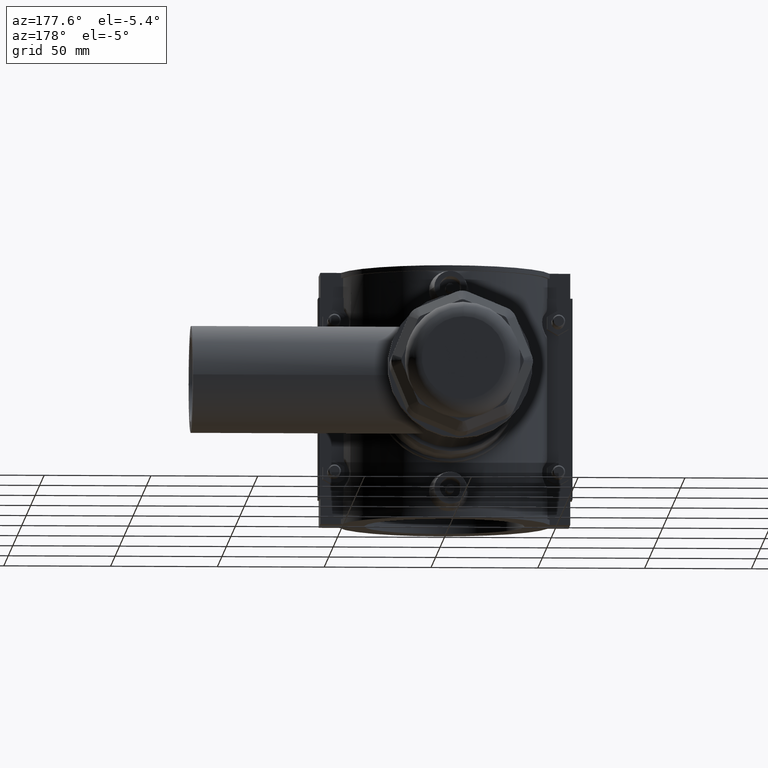
[diagram: clean part render]
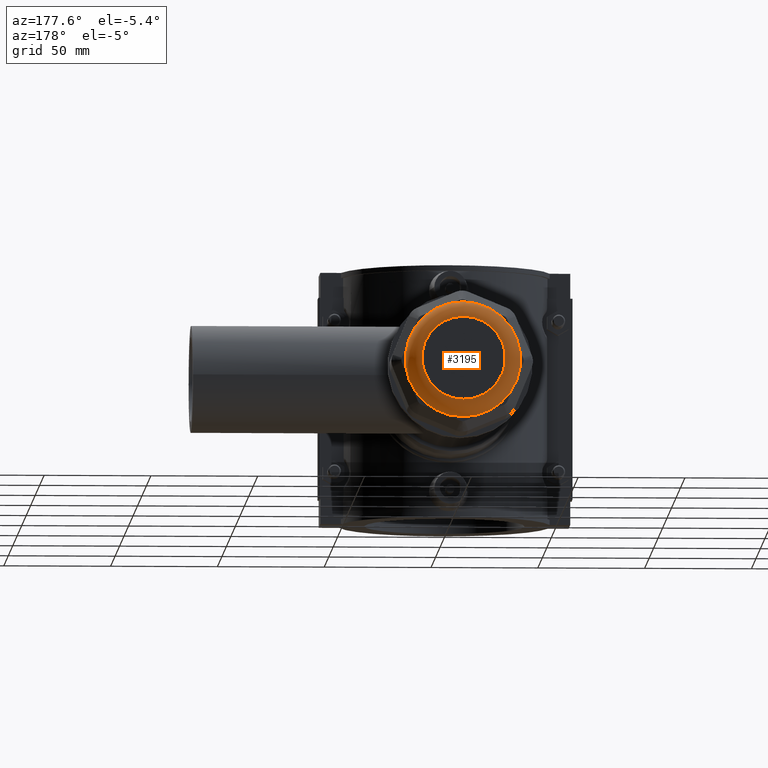
[diagram: same view with one face highlighted and labeled with its STEP entity id]
A machine part, auxiliary view. The second image highlights one B-rep face of the part: STEP entity #3195.
In plain terms, the highlighted toroidal blend (fillet) surface has major radius 19.5 mm and minor (blend) radius 7.5 mm.
Its self-contained STEP definition (entity closure, byte-faithful):
#20=TOROIDAL_SURFACE('',#3430,19.5,7.5);
#630=FACE_BOUND('',#1016,.T.);
#815=FACE_OUTER_BOUND('',#1015,.T.);
#1015=EDGE_LOOP('',(#2258));
#1016=EDGE_LOOP('',(#2259));
#1251=CIRCLE('',#3431,27.);
#1252=CIRCLE('',#3432,19.5);
#1401=VERTEX_POINT('',#5038);
#1402=VERTEX_POINT('',#5040);
#1742=EDGE_CURVE('',#1401,#1401,#1251,.T.);
#1743=EDGE_CURVE('',#1402,#1402,#1252,.T.);
#2258=ORIENTED_EDGE('',*,*,#1742,.T.);
#2259=ORIENTED_EDGE('',*,*,#1743,.T.);
#3195=ADVANCED_FACE('',(#815,#630),#20,.T.);
#3430=AXIS2_PLACEMENT_3D('',#5037,#3876,#3877);
#3431=AXIS2_PLACEMENT_3D('',#5039,#3878,#3879);
#3432=AXIS2_PLACEMENT_3D('',#5041,#3880,#3881);
#3876=DIRECTION('center_axis',(0.,1.,3.06161699786838E-16));
#3877=DIRECTION('ref_axis',(0.,0.,1.));
#3878=DIRECTION('center_axis',(0.,1.,3.06161699786838E-16));
#3879=DIRECTION('ref_axis',(6.12323399573677E-17,2.87835598976892E-16,-1.));
#3880=DIRECTION('center_axis',(0.,-1.,-3.06161699786838E-16));
#3881=DIRECTION('ref_axis',(6.12323399573677E-17,3.06161699786838E-16,-1.));
#5037=CARTESIAN_POINT('Origin',(0.,207.,5.18944081138691E-14));
#5038=CARTESIAN_POINT('',(1.65327317884893E-15,207.,27.0000000000001));
#5039=CARTESIAN_POINT('Origin',(0.,207.,5.18944081138691E-14));
#5040=CARTESIAN_POINT('',(-3.58209188750601E-15,214.5,19.5000000000001));
#5041=CARTESIAN_POINT('Origin',(0.,214.5,5.41906208622704E-14));